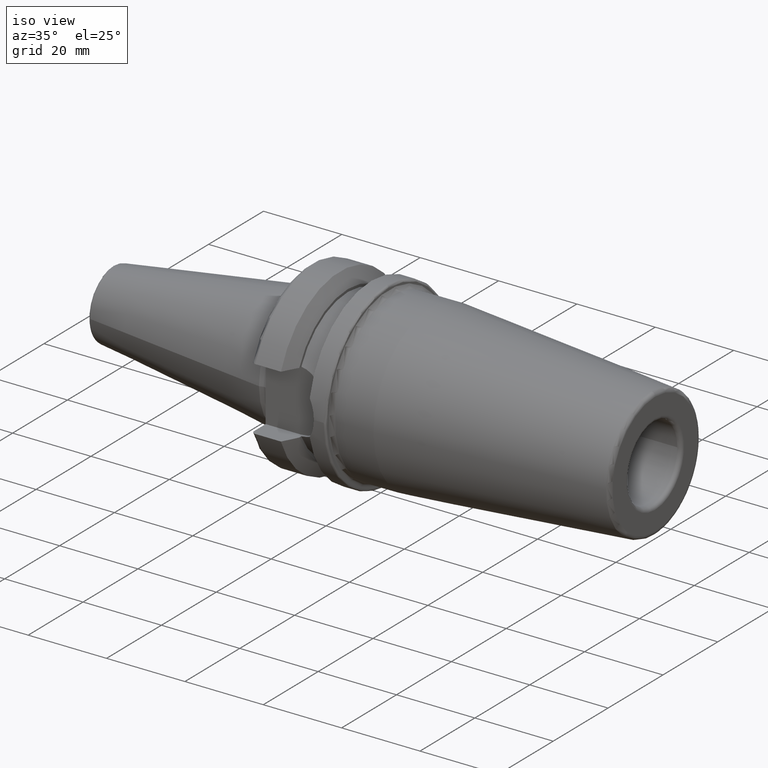
[diagram: clean part render]
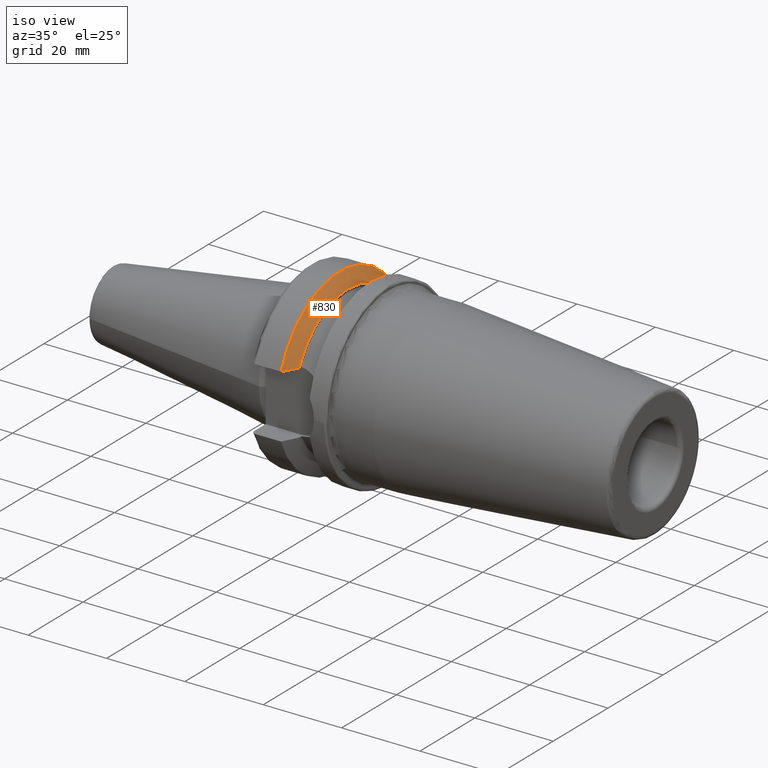
[diagram: same view with one face highlighted and labeled with its STEP entity id]
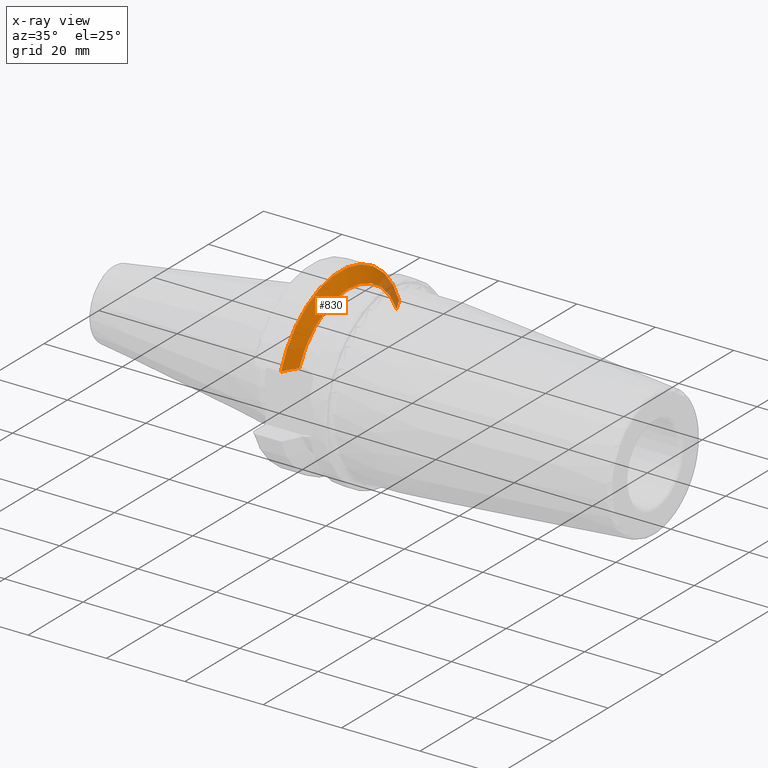
[diagram: x-ray of the same camera — body ghosted, the highlighted face saturated]
A machine part, iso view. The second image highlights one B-rep face of the part: STEP entity #830.
The next image is the same camera in x-ray: the body ghosted, the highlighted face saturated — about 9% of this face is hidden behind the body in this view.
In plain terms, the highlighted conical surface has half-angle 60.125 deg.
Its self-contained STEP definition (entity closure, byte-faithful):
#15=(
BOUNDED_CURVE()
B_SPLINE_CURVE(2,(#1368,#1369,#1370),.UNSPECIFIED.,.F.,.F.)
B_SPLINE_CURVE_WITH_KNOTS((3,3),(0.,0.293084380504246),.UNSPECIFIED.)
CURVE()
GEOMETRIC_REPRESENTATION_ITEM()
RATIONAL_B_SPLINE_CURVE((1.,1.00176330635057,1.))
REPRESENTATION_ITEM('')
);
#18=(
BOUNDED_CURVE()
B_SPLINE_CURVE(2,(#1515,#1516,#1517),.UNSPECIFIED.,.F.,.F.)
B_SPLINE_CURVE_WITH_KNOTS((3,3),(0.,0.293084380504246),.UNSPECIFIED.)
CURVE()
GEOMETRIC_REPRESENTATION_ITEM()
RATIONAL_B_SPLINE_CURVE((1.,1.00176330634997,1.))
REPRESENTATION_ITEM('')
);
#26=B_SPLINE_CURVE_WITH_KNOTS('',3,(#1357,#1358,#1359,#1360),
 .UNSPECIFIED.,.F.,.F.,(4,4),(1.61083209868431,1.74084467628762),
 .UNSPECIFIED.);
#34=B_SPLINE_CURVE_WITH_KNOTS('',3,(#1492,#1493,#1494,#1495),
 .UNSPECIFIED.,.F.,.F.,(4,4),(5.0512271220615,5.18123969966481),
 .UNSPECIFIED.);
#125=FACE_OUTER_BOUND('',#180,.T.);
#180=EDGE_LOOP('',(#737,#738,#739,#740,#741,#742));
#321=CIRCLE('',#951,23.);
#322=CIRCLE('',#953,19.466257323931);
#363=VERTEX_POINT('',#1354);
#364=VERTEX_POINT('',#1356);
#367=VERTEX_POINT('',#1367);
#389=VERTEX_POINT('',#1489);
#390=VERTEX_POINT('',#1491);
#394=VERTEX_POINT('',#1514);
#453=EDGE_CURVE('',#364,#363,#26,.T.);
#457=EDGE_CURVE('',#367,#364,#15,.T.);
#492=EDGE_CURVE('',#390,#389,#34,.T.);
#497=EDGE_CURVE('',#389,#394,#18,.T.);
#521=EDGE_CURVE('',#394,#367,#321,.T.);
#522=EDGE_CURVE('',#390,#363,#322,.T.);
#737=ORIENTED_EDGE('',*,*,#453,.T.);
#738=ORIENTED_EDGE('',*,*,#522,.F.);
#739=ORIENTED_EDGE('',*,*,#492,.T.);
#740=ORIENTED_EDGE('',*,*,#497,.T.);
#741=ORIENTED_EDGE('',*,*,#521,.T.);
#742=ORIENTED_EDGE('',*,*,#457,.T.);
#789=CONICAL_SURFACE('',#952,21.2331286619655,1.04937921276161);
#830=ADVANCED_FACE('',(#125),#789,.T.);
#951=AXIS2_PLACEMENT_3D('',#1573,#1187,#1188);
#952=AXIS2_PLACEMENT_3D('',#1574,#1189,#1190);
#953=AXIS2_PLACEMENT_3D('',#1575,#1191,#1192);
#1187=DIRECTION('center_axis',(1.,1.62798202122572E-21,0.));
#1188=DIRECTION('ref_axis',(0.,0.,-1.));
#1189=DIRECTION('center_axis',(-1.,-1.62798202122572E-21,0.));
#1190=DIRECTION('ref_axis',(0.,1.,0.));
#1191=DIRECTION('center_axis',(1.,1.62798202122572E-21,0.));
#1192=DIRECTION('ref_axis',(0.,0.,-1.));
#1354=CARTESIAN_POINT('',(11.6,-17.7357033748735,8.02371485036701));
#1356=CARTESIAN_POINT('',(10.95,-18.9595942383938,8.05));
#1357=CARTESIAN_POINT('Ctrl Pts',(10.95,-18.9595942383938,8.05));
#1358=CARTESIAN_POINT('Ctrl Pts',(11.1645854420581,-18.5537650917068,8.05));
#1359=CARTESIAN_POINT('Ctrl Pts',(11.3814915897691,-18.1451925506997,8.04141618563362));
#1360=CARTESIAN_POINT('Ctrl Pts',(11.6,-17.7357033748735,8.02371485036701));
#1367=CARTESIAN_POINT('',(9.57005904049381,-21.5452430944744,8.05));
#1368=CARTESIAN_POINT('Ctrl Pts',(9.57005904049381,-21.5452430944744,8.05));
#1369=CARTESIAN_POINT('Ctrl Pts',(10.3040741701992,-20.1811846958682,8.05));
#1370=CARTESIAN_POINT('Ctrl Pts',(10.95,-18.9595942383938,8.05));
#1489=CARTESIAN_POINT('',(10.95,18.9595942383938,8.05));
#1491=CARTESIAN_POINT('',(11.6,17.7357033748735,8.02371485036701));
#1492=CARTESIAN_POINT('Ctrl Pts',(11.6,17.7357033748735,8.02371485036701));
#1493=CARTESIAN_POINT('Ctrl Pts',(11.381492847094,18.1451901944475,8.04141608377791));
#1494=CARTESIAN_POINT('Ctrl Pts',(11.1645860488186,18.5537639441868,8.05));
#1495=CARTESIAN_POINT('Ctrl Pts',(10.95,18.9595942383938,8.05));
#1514=CARTESIAN_POINT('',(9.57005904049381,21.5452430944744,8.05));
#1515=CARTESIAN_POINT('Ctrl Pts',(10.95,18.9595942383938,8.05));
#1516=CARTESIAN_POINT('Ctrl Pts',(10.304074170198,20.1811846958705,8.05));
#1517=CARTESIAN_POINT('Ctrl Pts',(9.57005904049381,21.5452430944744,8.05));
#1573=CARTESIAN_POINT('Origin',(9.57005904049381,2.08175114951191E-15,0.));
#1574=CARTESIAN_POINT('Origin',(10.5850295202469,2.0817528018656E-15,0.));
#1575=CARTESIAN_POINT('Origin',(11.6,2.08175445421929E-15,0.));